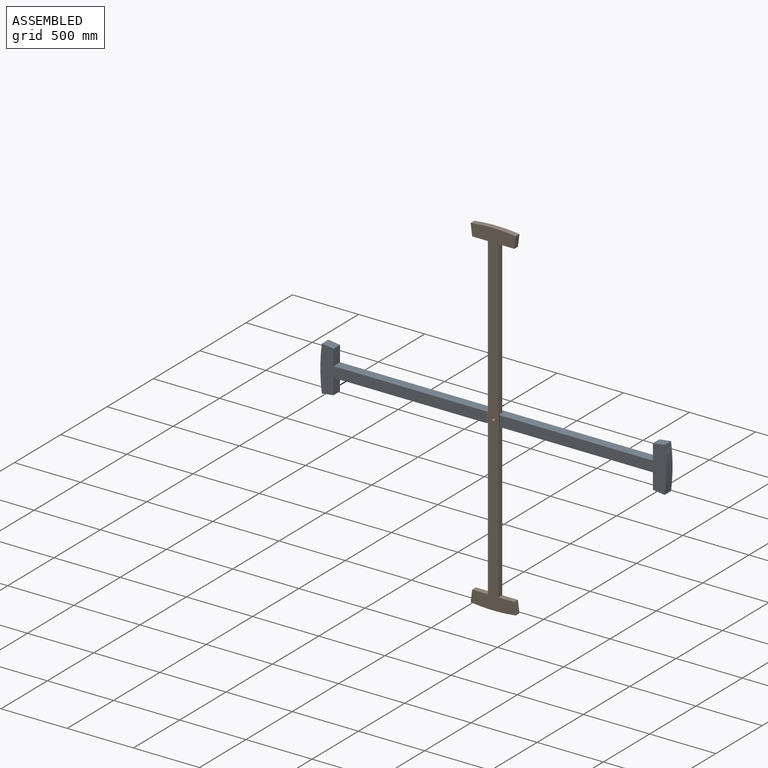
[diagram: assembled view]
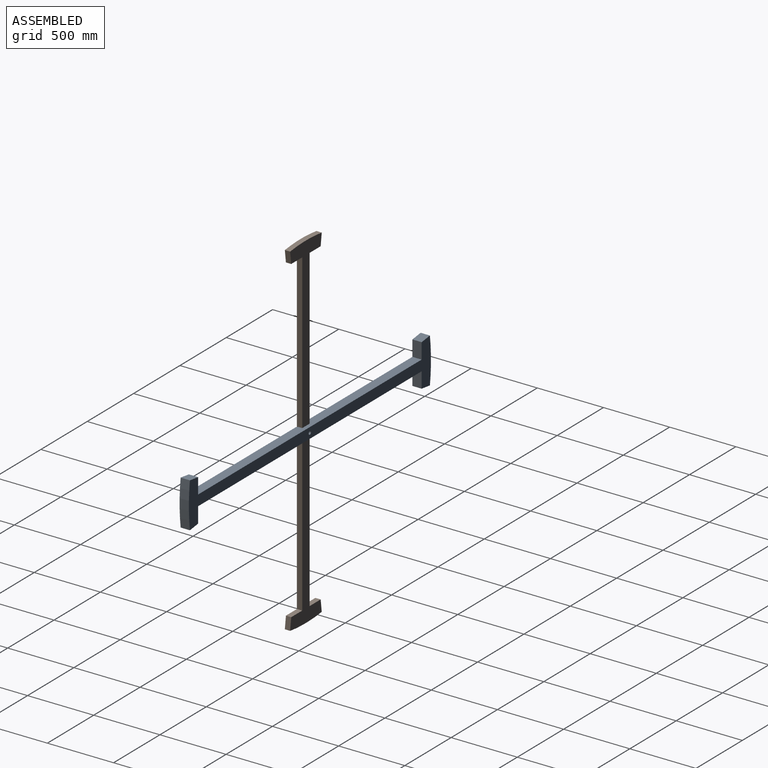
[diagram: assembled view, second angle]
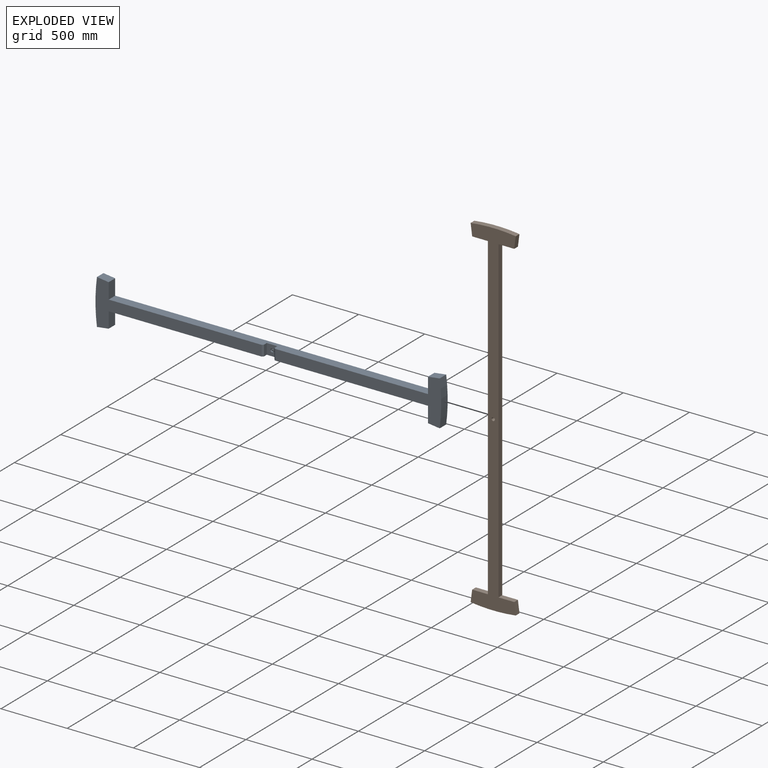
[diagram: exploded view]
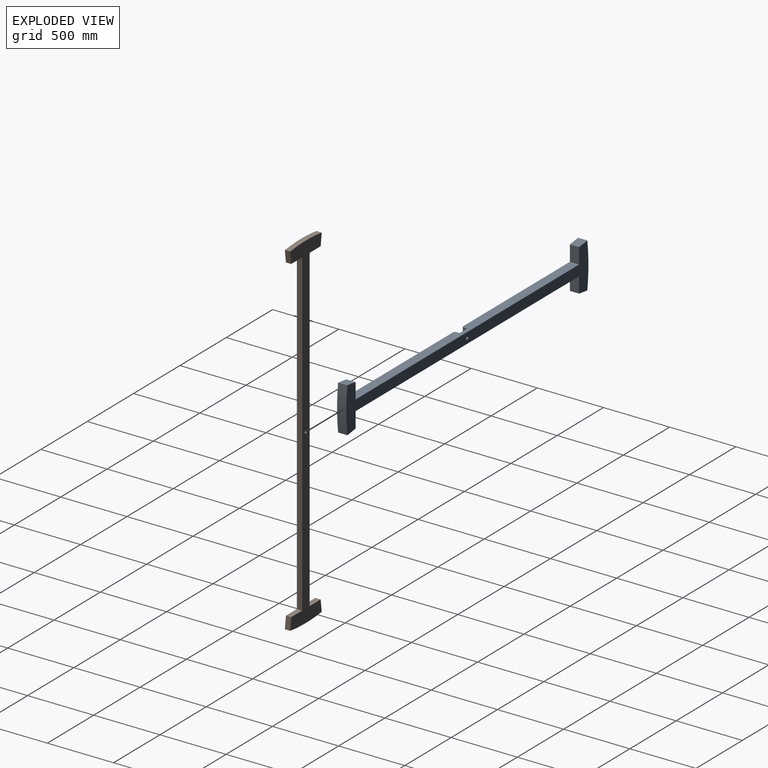
[diagram: exploded view, second angle]
ASSEMBLY  parts=2 mates=3
PART A: 21 faces, bbox 340.9x70x2612 mm
  f0: plane 2412x70mm, normal (1,0,0), area 165540mm2, adj f1,f7,f8,f13,f14,f15,f16,f17
  f1: plane 1256x340.93mm, normal (0,1,0), area 124267.1mm2, adj f0,f2,f3,f4,f5,f6,f7,f19
  f2: plane 2412x70mm, normal (-1,0,0), area 165540mm2, adj f1,f3,f12,f13,f14,f15,f16,f17
  f3: plane 118.77x70mm, normal (0,0,1), area 8314.1mm2, adj f1,f2,f4,f13
  f4: plane 88.83x70mm, normal (-0.99,0,0.13), area 6271.5mm2, adj f1,f3,f5,f13
  f5: cylinder r=1306mm len=340.93mm, axis (0,1,0), area 23933.7mm2, adj f1,f4,f6,f13
  f6: plane 88.83x70mm, normal (0.99,0,0.13), area 6271.5mm2, adj f1,f5,f7,f13
  f7: plane 118.77x70mm, normal (0,0,1), area 8314.1mm2, adj f0,f1,f6,f13
  f8: plane 118.77x70mm, normal (0,0,-1), area 8314.1mm2, adj f0,f9,f13,f14
  f9: plane 88.83x70mm, normal (0.99,0,-0.13), area 6271.5mm2, adj f8,f10,f13,f14
  f10: cylinder r=1306mm len=340.93mm, axis (0,1,0), area 23933.7mm2, adj f9,f11,f13,f14
  f11: plane 88.83x70mm, normal (-0.99,0,-0.13), area 6271.5mm2, adj f10,f12,f13,f14
  f12: plane 118.77x70mm, normal (0,0,-1), area 8314.1mm2, adj f2,f11,f13,f14
  f13: plane 2612x340.93mm, normal (0,-1,0), area 256043.3mm2, adj f0,f2,f3,f4,f5,f6,f7,f8
  f14: plane 1256x340.93mm, normal (0,1,0), area 124267.1mm2, adj f0,f2,f8,f9,f10,f11,f12,f20
  f15: plane 80x30mm, normal (0,0,1), area 2400mm2, adj f0,f2,f16,f19
  f16: plane 80x80mm, normal (0,1,0), area 5909.1mm2, adj f0,f2,f15,f17,f18
  f17: plane 80x30mm, normal (0,0,-1), area 2400mm2, adj f0,f2,f16,f20
  f18: cylinder r=12.5mm len=30mm, axis (0,-1,0), area 2356.2mm2, adj f13,f16
  f19: plane 80x10mm, normal (0,0.71,0.71), area 1131.4mm2, adj f0,f1,f2,f15
  f20: plane 80x10mm, normal (0,0.71,-0.71), area 1131.4mm2, adj f0,f2,f14,f17
PART B: 15 faces, bbox 340.9x40x2612 mm
  f0: plane 2412x40mm, normal (-1,0,0), area 96480mm2, adj f1,f11,f12,f13
  f1: plane 118.77x40mm, normal (0,0,1), area 4750.9mm2, adj f0,f2,f12,f13
  f2: plane 88.83x40mm, normal (-0.99,0,0.13), area 3583.7mm2, adj f1,f3,f12,f13
  f3: cylinder r=1306mm len=340.93mm, axis (0,1,0), area 13676.4mm2, adj f2,f4,f12,f13
  f4: plane 88.83x40mm, normal (0.99,0,0.13), area 3583.7mm2, adj f3,f5,f12,f13
  f5: plane 118.77x40mm, normal (0,0,1), area 4750.9mm2, adj f4,f6,f12,f13
  f6: plane 2412x40mm, normal (1,0,0), area 96480mm2, adj f5,f7,f12,f13
  f7: plane 118.77x40mm, normal (0,0,-1), area 4750.9mm2, adj f6,f8,f12,f13
  f8: plane 88.83x40mm, normal (0.99,0,-0.13), area 3583.7mm2, adj f7,f9,f12,f13
  f9: cylinder r=1306mm len=340.93mm, axis (0,1,0), area 13676.4mm2, adj f8,f10,f12,f13
  f10: plane 88.83x40mm, normal (-0.99,0,-0.13), area 3583.7mm2, adj f9,f11,f12,f13
  f11: plane 118.77x40mm, normal (0,0,-1), area 4750.9mm2, adj f0,f10,f12,f13
  f12: plane 2612x340.93mm, normal (0,-1,0), area 256043.3mm2, adj f0,f1,f2,f3,f4,f5,f6,f7
  f13: plane 2612x340.93mm, normal (0,1,0), area 256043.3mm2, adj f0,f1,f2,f3,f4,f5,f6,f7
  f14: cylinder r=12.5mm len=40mm, axis (0,-1,0), area 3141.6mm2, adj f12,f13
PLACE A rot(axis=(0.71,0,-0.71),180deg) t=(-262.54,-135.59,-89.87)mm
PLACE B t=(-262.54,-150.59,-89.87)mm fixed
MATE planar A.f17 <-> B.f0  axis (1,0,0) through (-302.54,-145.59,-49.87)mm
MATE slider B.f14 <-> A.f18  axis (0,-1,0) through (-262.54,-130.59,-89.87)mm
MATE planar A.f18 <-> B.f13  axis (0,-1,0) through (-262.54,-130.59,-89.87)mm
